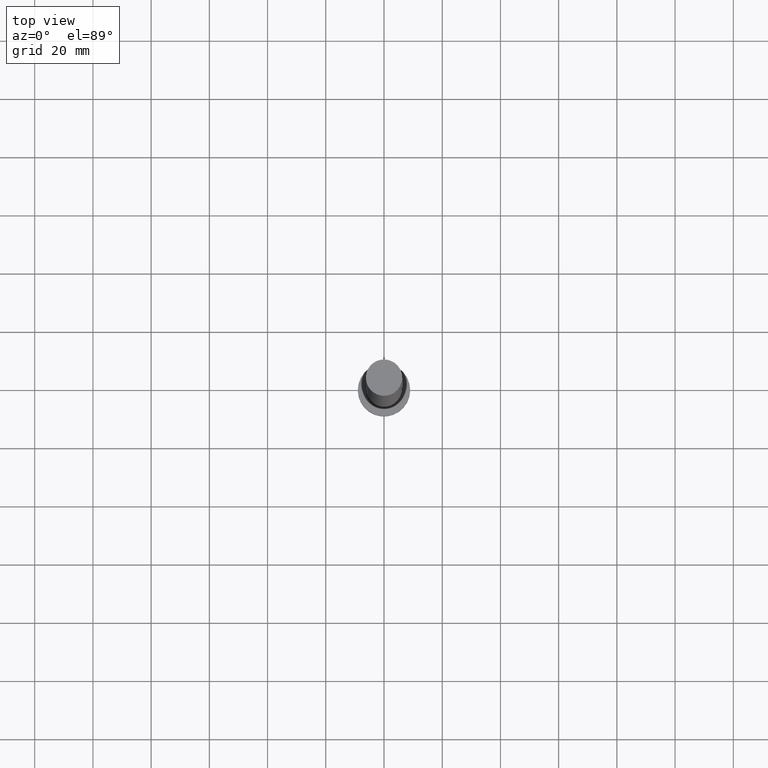
[diagram: clean part render]
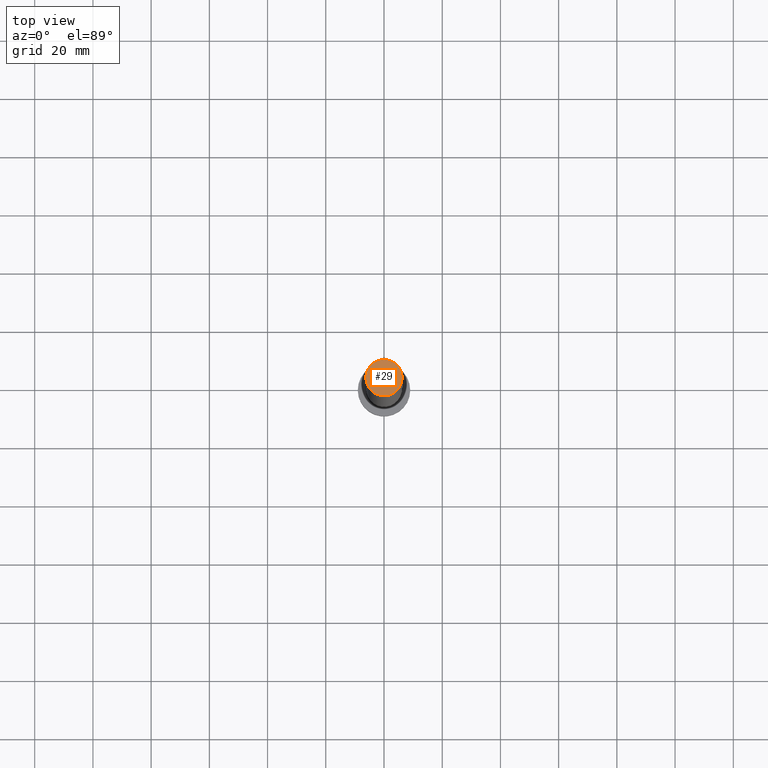
[diagram: same view with one face highlighted and labeled with its STEP entity id]
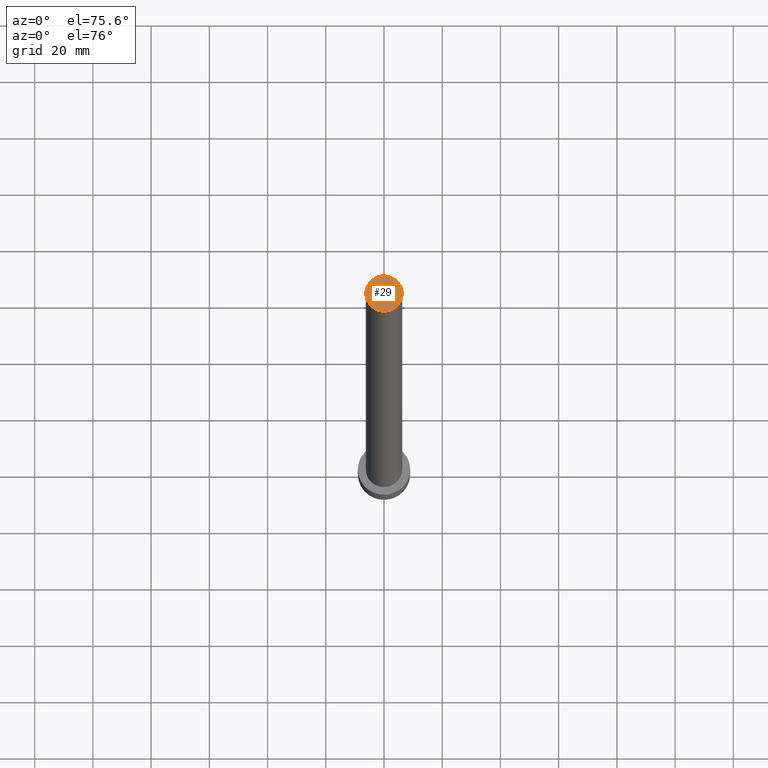
[diagram: same view with one face highlighted and labeled with its STEP entity id]
A machine part, top view. The second image highlights one B-rep face of the part: STEP entity #29.
A second angle (auxiliary view) of the same face is appended — the face is thin or edge-on in the first view.
In plain terms, the highlighted planar face has unit normal (0, 0, 1).
Its self-contained STEP definition (entity closure, byte-faithful):
#4 = CARTESIAN_POINT ( 'NONE',  ( 0.000000000000000000, 0.000000000000000000, 250.0000000000000000 ) ) ;
#6 = CIRCLE ( 'NONE', #246, 6.250000000000000000 ) ;
#28 = CIRCLE ( 'NONE', #189, 6.250000000000000000 ) ;
#29 = ADVANCED_FACE ( 'NONE', ( #118 ), #101, .T. ) ;
#35 = EDGE_CURVE ( 'NONE', #108, #98, #28, .T. ) ;
#57 = ORIENTED_EDGE ( 'NONE', *, *, #35, .T. ) ;
#79 = DIRECTION ( 'NONE',  ( 0.000000000000000000, 0.000000000000000000, 1.000000000000000000 ) ) ;
#82 = CARTESIAN_POINT ( 'NONE',  ( 6.250000000000000000, 7.654042494670957606E-16, 250.0000000000000000 ) ) ;
#98 = VERTEX_POINT ( 'NONE', #82 ) ;
#100 = ORIENTED_EDGE ( 'NONE', *, *, #202, .T. ) ;
#101 = PLANE ( 'NONE',  #123 ) ;
#108 = VERTEX_POINT ( 'NONE', #129 ) ;
#116 = CARTESIAN_POINT ( 'NONE',  ( 0.000000000000000000, 0.000000000000000000, 250.0000000000000000 ) ) ;
#118 = FACE_OUTER_BOUND ( 'NONE', #206, .T. ) ;
#123 = AXIS2_PLACEMENT_3D ( 'NONE', #116, #238, #169 ) ;
#129 = CARTESIAN_POINT ( 'NONE',  ( -6.250000000000000000, 0.000000000000000000, 250.0000000000000000 ) ) ;
#142 = DIRECTION ( 'NONE',  ( 1.000000000000000000, 0.000000000000000000, 0.000000000000000000 ) ) ;
#167 = CARTESIAN_POINT ( 'NONE',  ( 0.000000000000000000, 0.000000000000000000, 250.0000000000000000 ) ) ;
#169 = DIRECTION ( 'NONE',  ( 1.000000000000000000, 0.000000000000000000, -0.000000000000000000 ) ) ;
#189 = AXIS2_PLACEMENT_3D ( 'NONE', #4, #234, #213 ) ;
#202 = EDGE_CURVE ( 'NONE', #98, #108, #6, .T. ) ;
#206 = EDGE_LOOP ( 'NONE', ( #57, #100 ) ) ;
#213 = DIRECTION ( 'NONE',  ( 1.000000000000000000, 0.000000000000000000, 0.000000000000000000 ) ) ;
#234 = DIRECTION ( 'NONE',  ( 0.000000000000000000, 0.000000000000000000, 1.000000000000000000 ) ) ;
#238 = DIRECTION ( 'NONE',  ( 0.000000000000000000, 0.000000000000000000, 1.000000000000000000 ) ) ;
#246 = AXIS2_PLACEMENT_3D ( 'NONE', #167, #79, #142 ) ;